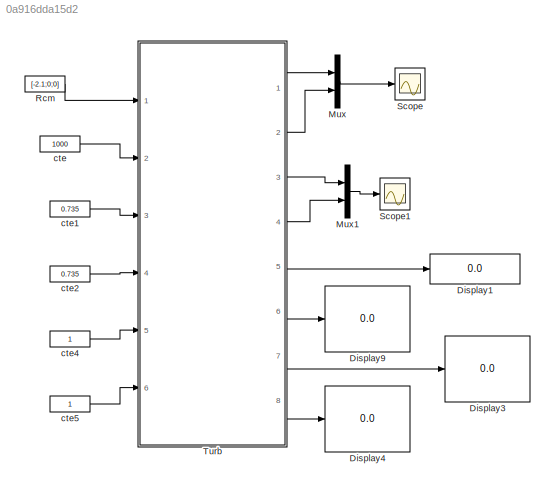
MODEL slx_0a916dda15d2
KIND model
BLOCK [Display] Display1
  Decimation = 1
  Lockdown = off
  Ports = [1]
BLOCK [Display] Display3
  Decimation = 1
  Lockdown = off
  Ports = [1]
BLOCK [Display] Display4
  Decimation = 1
  Lockdown = off
  Ports = [1]
BLOCK [Display] Display9
  Decimation = 1
  Lockdown = off
  Ports = [1]
BLOCK [Mux] Mux
  DisplayOption = bar
  Inputs = 2
  Ports = [2, 1]
BLOCK [Mux] Mux1
  DisplayOption = bar
  Inputs = 2
  Ports = [2, 1]
BLOCK [Constant] Rcm
  Value = [-2.1;0;0]
BLOCK [Scope] Scope
  DataFormat = StructureWithTime
  Floating = off
  NumInputPorts = 1
  Ports = [1]
  SampleTime = 0
  ShowLegends = off
BLOCK [Scope] Scope1
  DataFormat = StructureWithTime
  Floating = off
  NumInputPorts = 1
  Ports = [1]
  SampleTime = 0
  SaveName = ScopeData1
  ShowLegends = off
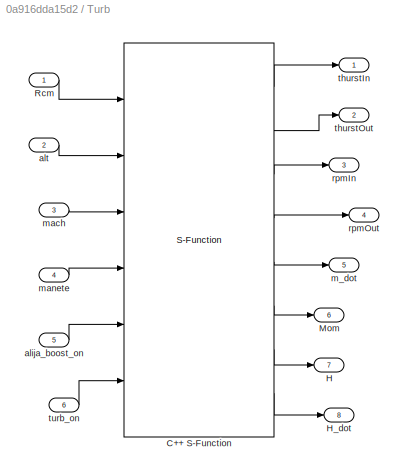
BLOCK [SubSystem] Turb
  FunctionWithSeparateData = off
  MaskHideContents = off
  MinAlgLoopOccurrences = off
  Opaque = off
  Ports = [6, 8]
  PropExecContextOutsideSubsystem = off
  RTWSystemCode = Auto
  RequestExecContextInheritance = off
  TreatAsAtomicUnit = on
BLOCK [S-Function] Turb/C++ S-Function
  EnableBusSupport = off
  FunctionName = sf_tm_turb
  Ports = [6, 8]
BLOCK [Outport] Turb/H
  IconDisplay = Port number
  Port = 7
BLOCK [Outport] Turb/H_dot
  IconDisplay = Port number
  Port = 8
BLOCK [Outport] Turb/Mom
  IconDisplay = Port number
  Port = 6
BLOCK [Inport] Turb/Rcm
  IconDisplay = Port number
BLOCK [Inport] Turb/alija_boost_on
  IconDisplay = Port number
  Port = 5
BLOCK [Inport] Turb/alt
  IconDisplay = Port number
  Port = 2
BLOCK [Outport] Turb/m_dot
  IconDisplay = Port number
  Port = 5
BLOCK [Inport] Turb/mach
  IconDisplay = Port number
  Port = 3
BLOCK [Inport] Turb/manete
  IconDisplay = Port number
  Port = 4
BLOCK [Outport] Turb/rpmIn
  IconDisplay = Port number
  Port = 3
BLOCK [Outport] Turb/rpmOut
  IconDisplay = Port number
  Port = 4
BLOCK [Outport] Turb/thurstIn
  IconDisplay = Port number
BLOCK [Outport] Turb/thurstOut
  IconDisplay = Port number
  Port = 2
BLOCK [Inport] Turb/turb_on
  IconDisplay = Port number
  Port = 6
BLOCK [Constant] cte
  Value = 1000
BLOCK [Constant] cte1
  Value = 0.735
BLOCK [Constant] cte2
  Value = 0.735
BLOCK [Constant] cte4
BLOCK [Constant] cte5
LINE Mux1:1 -> Scope1:1
LINE Mux:1 -> Scope:1
LINE Rcm:1 -> Turb:1
LINE Turb/C++ S-Function:1 -> Turb/thurstIn:1
LINE Turb/C++ S-Function:2 -> Turb/thurstOut:1
LINE Turb/C++ S-Function:3 -> Turb/rpmIn:1
LINE Turb/C++ S-Function:4 -> Turb/rpmOut:1
LINE Turb/C++ S-Function:5 -> Turb/m_dot:1
LINE Turb/C++ S-Function:6 -> Turb/Mom:1
LINE Turb/C++ S-Function:7 -> Turb/H:1
LINE Turb/C++ S-Function:8 -> Turb/H_dot:1
LINE Turb/Rcm:1 -> Turb/C++ S-Function:1
LINE Turb/alija_boost_on:1 -> Turb/C++ S-Function:5
LINE Turb/alt:1 -> Turb/C++ S-Function:2
LINE Turb/mach:1 -> Turb/C++ S-Function:3
LINE Turb/manete:1 -> Turb/C++ S-Function:4
LINE Turb/turb_on:1 -> Turb/C++ S-Function:6
LINE Turb:1 -> Mux:1
LINE Turb:2 -> Mux:2
LINE Turb:3 -> Mux1:1
LINE Turb:4 -> Mux1:2
LINE Turb:5 -> Display1:1
LINE Turb:6 -> Display9:1
LINE Turb:7 -> Display3:1
LINE Turb:8 -> Display4:1
LINE cte1:1 -> Turb:3
LINE cte2:1 -> Turb:4
LINE cte4:1 -> Turb:5
LINE cte5:1 -> Turb:6
LINE cte:1 -> Turb:2
